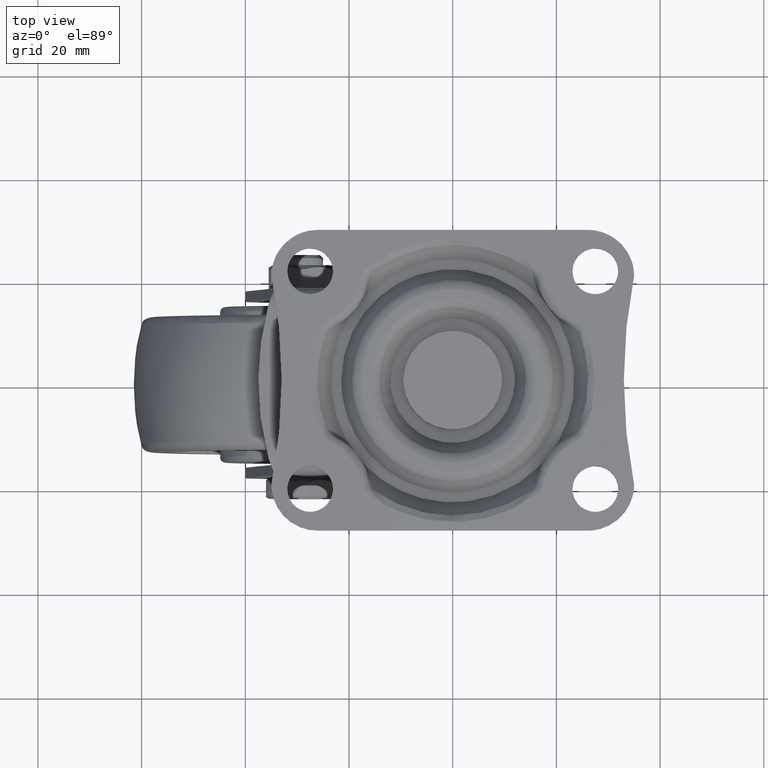
[diagram: clean part render]
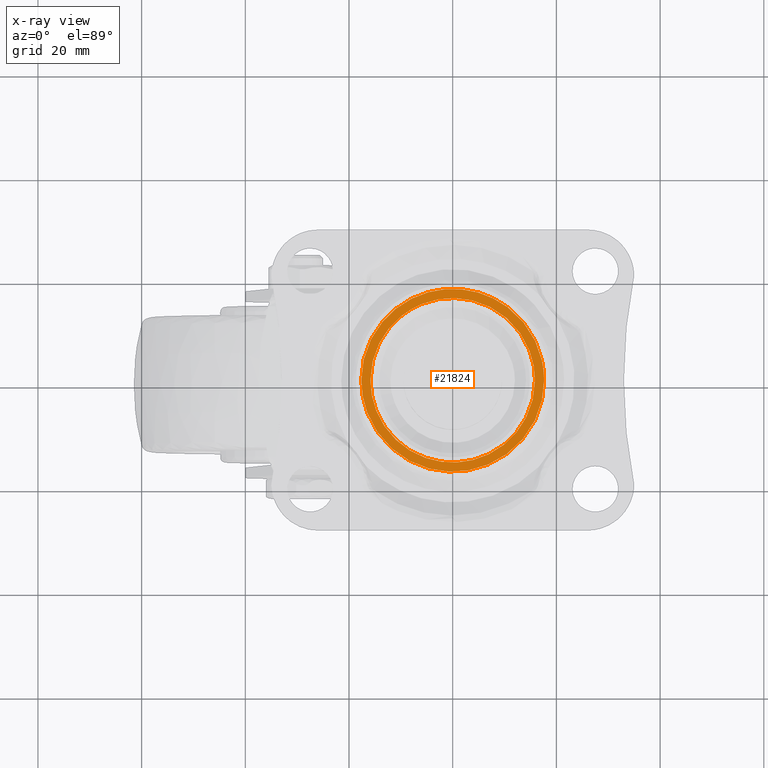
[diagram: x-ray — body ghosted, one internal face saturated and labeled with its STEP entity id]
A machine part, top view, then the same camera in x-ray: the body is ghosted and one INTERNAL B-rep face — a face not visible from any outside direction — is saturated and labeled: STEP entity #21824.
In plain terms, the highlighted face is a freeform B-spline surface patch.
Its self-contained STEP definition (entity closure, byte-faithful):
#8960=CARTESIAN_POINT('',(3.704368783670742,15.429806442625701,-1.999999999987358));
#8961=VERTEX_POINT('',#8960);
#8967=CARTESIAN_POINT('',(15.868247380920700,-1.421085E-014,-2.0));
#8968=VERTEX_POINT('',#8967);
#8969=CARTESIAN_POINT('',(3.704368783670742,15.429806442625697,-1.999999999987358));
#8970=CARTESIAN_POINT('',(15.868247380920701,12.509517563265035,-2.000000000000000));
#8971=CARTESIAN_POINT('',(15.868247380920700,-1.421085E-014,-2.0));
#8979=(BOUNDED_CURVE()B_SPLINE_CURVE(2,(#8969,#8970,#8971),.UNSPECIFIED.,.F.,.U.)B_SPLINE_CURVE_WITH_KNOTS((3,3),(0.289890169614090,0.500000000000000),.UNSPECIFIED.)CURVE()GEOMETRIC_REPRESENTATION_ITEM()RATIONAL_B_SPLINE_CURVE((0.921445412891104,0.753841021895689,1.0))REPRESENTATION_ITEM(''));
#8980=EDGE_CURVE('',#8961,#8968,#8979,.T.);
#8982=CARTESIAN_POINT('',(-15.868247380920700,-1.421085E-014,-2.0));
#8983=VERTEX_POINT('',#8982);
#8984=CARTESIAN_POINT('',(15.868247380920700,-1.421085E-014,-2.0));
#8985=CARTESIAN_POINT('',(15.868247380920701,-15.868247380920717,-2.0));
#8986=CARTESIAN_POINT('',(0.0,-15.868247380920710,-2.0));
#8987=CARTESIAN_POINT('',(-15.868247380920701,-15.868247380920717,-2.0));
#8988=CARTESIAN_POINT('',(-15.868247380920700,-1.421085E-014,-2.0));
#8996=(BOUNDED_CURVE()B_SPLINE_CURVE(2,(#8984,#8985,#8986,#8987,#8988),.UNSPECIFIED.,.F.,.U.)B_SPLINE_CURVE_WITH_KNOTS((3,2,3),(0.500000000000000,0.750000000000000,1.0),.UNSPECIFIED.)CURVE()GEOMETRIC_REPRESENTATION_ITEM()RATIONAL_B_SPLINE_CURVE((1.0,0.707106781186547,1.0,0.707106781186547,1.0))REPRESENTATION_ITEM(''));
#8997=EDGE_CURVE('',#8968,#8983,#8996,.T.);
#8999=CARTESIAN_POINT('',(-5.951681165614497,14.709818701982110,-1.999999999988168));
#9000=VERTEX_POINT('',#8999);
#9001=CARTESIAN_POINT('',(-15.868247380920700,-1.421085E-014,-2.0));
#9002=CARTESIAN_POINT('',(-15.868247380920694,10.697516336606308,-2.000000000000000));
#9003=CARTESIAN_POINT('',(-5.951681165614497,14.709818701982110,-1.999999999988168));
#9011=(BOUNDED_CURVE()B_SPLINE_CURVE(2,(#9001,#9002,#9003),.UNSPECIFIED.,.F.,.U.)B_SPLINE_CURVE_WITH_KNOTS((3,3),(0.0,0.186318862055918),.UNSPECIFIED.)CURVE()GEOMETRIC_REPRESENTATION_ITEM()RATIONAL_B_SPLINE_CURVE((1.0,0.781713875067130,0.888794329334967))REPRESENTATION_ITEM(''));
#9012=EDGE_CURVE('',#8983,#9000,#9011,.T.);
#9052=CARTESIAN_POINT('',(-5.951681165614497,14.709818701982110,-1.999999999988168));
#9053=CARTESIAN_POINT('',(-3.088578225110590,15.868247380920684,-2.000000000000000));
#9054=CARTESIAN_POINT('',(0.0,15.868247380920691,-2.0));
#9055=CARTESIAN_POINT('',(1.878130844238825,15.868247380920691,-2.0));
#9056=CARTESIAN_POINT('',(3.704368783670743,15.429806442625694,-1.999999999987358));
#9064=(BOUNDED_CURVE()B_SPLINE_CURVE(2,(#9052,#9053,#9054,#9055,#9056),.UNSPECIFIED.,.F.,.U.)B_SPLINE_CURVE_WITH_KNOTS((3,2,3),(0.186318862055918,0.250000000000000,0.289890169614090),.UNSPECIFIED.)CURVE()GEOMETRIC_REPRESENTATION_ITEM()RATIONAL_B_SPLINE_CURVE((0.888794329334967,0.925392906119418,1.0,0.953265759290859,0.921445412891104))REPRESENTATION_ITEM(''));
#9065=EDGE_CURVE('',#9000,#8961,#9064,.T.);
#9525=CARTESIAN_POINT('',(13.514556966336940,-11.324109255215310,-2.000000000000496));
#9526=VERTEX_POINT('',#9525);
#9527=CARTESIAN_POINT('',(-17.631752619079300,-1.421085E-014,-2.0));
#9528=VERTEX_POINT('',#9527);
#9529=CARTESIAN_POINT('',(13.514556966336945,-11.324109255215310,-2.000000000000496));
#9530=CARTESIAN_POINT('',(8.229260321144718,-17.631752619079315,-2.000000000000000));
#9531=CARTESIAN_POINT('',(0.0,-17.631752619079311,-2.0));
#9532=CARTESIAN_POINT('',(-17.631752619079297,-17.631752619079307,-2.000000000000000));
#9533=CARTESIAN_POINT('',(-17.631752619079300,-1.421085E-014,-2.0));
#9541=(BOUNDED_CURVE()B_SPLINE_CURVE(2,(#9529,#9530,#9531,#9532,#9533),.UNSPECIFIED.,.F.,.U.)B_SPLINE_CURVE_WITH_KNOTS((3,2,3),(0.611719378420028,0.750000000000000,1.0),.UNSPECIFIED.)CURVE()GEOMETRIC_REPRESENTATION_ITEM()RATIONAL_B_SPLINE_CURVE((0.855206479072511,0.837994174583669,1.0,0.707106781186548,1.0))REPRESENTATION_ITEM(''));
#9542=EDGE_CURVE('',#9526,#9528,#9541,.T.);
#10713=CARTESIAN_POINT('',(10.532645200699189,14.140087888574151,-2.000000000000206));
#10714=VERTEX_POINT('',#10713);
#10720=CARTESIAN_POINT('',(-17.631752619079300,-1.421085E-014,-2.0));
#10721=CARTESIAN_POINT('',(-17.631752619079297,17.631752619079279,-2.000000000000000));
#10722=CARTESIAN_POINT('',(0.0,17.631752619079290,-2.0));
#10723=CARTESIAN_POINT('',(5.845081419144844,17.631752619079293,-2.000000000000000));
#10724=CARTESIAN_POINT('',(10.532645200699189,14.140087888574152,-2.000000000000207));
#10732=(BOUNDED_CURVE()B_SPLINE_CURVE(2,(#10720,#10721,#10722,#10723,#10724),.UNSPECIFIED.,.F.,.U.)B_SPLINE_CURVE_WITH_KNOTS((3,2,3),(0.0,0.250000000000000,0.353055019499654),.UNSPECIFIED.)CURVE()GEOMETRIC_REPRESENTATION_ITEM()RATIONAL_B_SPLINE_CURVE((1.0,0.707106781186548,1.0,0.879263534495453,0.858067059446029))REPRESENTATION_ITEM(''));
#10733=EDGE_CURVE('',#9528,#10714,#10732,.T.);
#10756=CARTESIAN_POINT('',(17.631752619079300,-1.421085E-014,-2.0));
#10757=VERTEX_POINT('',#10756);
#10758=CARTESIAN_POINT('',(17.631752619079300,-1.421085E-014,-2.0));
#10759=CARTESIAN_POINT('',(17.631752619079297,-6.410515264161340,-2.000000000000000));
#10760=CARTESIAN_POINT('',(13.514556966336944,-11.324109255215310,-2.000000000000496));
#10768=(BOUNDED_CURVE()B_SPLINE_CURVE(2,(#10758,#10759,#10760),.UNSPECIFIED.,.F.,.U.)B_SPLINE_CURVE_WITH_KNOTS((3,3),(0.500000000000000,0.611719378420028),.UNSPECIFIED.)CURVE()GEOMETRIC_REPRESENTATION_ITEM()RATIONAL_B_SPLINE_CURVE((1.0,0.869112606602880,0.855206479072511))REPRESENTATION_ITEM(''));
#10769=EDGE_CURVE('',#10757,#9526,#10768,.T.);
#10771=CARTESIAN_POINT('',(10.532645200699189,14.140087888574149,-2.000000000000206));
#10772=CARTESIAN_POINT('',(17.631752619079304,8.852116535871330,-2.000000000000000));
#10773=CARTESIAN_POINT('',(17.631752619079300,-1.421085E-014,-2.0));
#10781=(BOUNDED_CURVE()B_SPLINE_CURVE(2,(#10771,#10772,#10773),.UNSPECIFIED.,.F.,.U.)B_SPLINE_CURVE_WITH_KNOTS((3,3),(0.353055019499654,0.500000000000000),.UNSPECIFIED.)CURVE()GEOMETRIC_REPRESENTATION_ITEM()RATIONAL_B_SPLINE_CURVE((0.858067059446029,0.827843246691094,1.0))REPRESENTATION_ITEM(''));
#10782=EDGE_CURVE('',#10714,#10757,#10781,.T.);
#21807=CARTESIAN_POINT('',(-19.393163849334680,19.388004089486071,-2.0));
#21808=CARTESIAN_POINT('',(19.393162903493771,19.388004089486071,-2.0));
#21809=CARTESIAN_POINT('',(-19.393163849334680,-19.388105925024771,-2.0));
#21810=CARTESIAN_POINT('',(19.393162903493771,-19.388105925024771,-2.0));
#21811=B_SPLINE_SURFACE_WITH_KNOTS('',1,1,((#21807,#21809),(#21808,#21810)),.UNSPECIFIED.,.F.,.F.,.U.,(2,2),(2,2),(0.0,38.786326752828451),(0.0,38.776110014510841),.UNSPECIFIED.);
#21812=ORIENTED_EDGE('',*,*,#10733,.T.);
#21813=ORIENTED_EDGE('',*,*,#10782,.T.);
#21814=ORIENTED_EDGE('',*,*,#10769,.T.);
#21815=ORIENTED_EDGE('',*,*,#9542,.T.);
#21816=EDGE_LOOP('',(#21812,#21813,#21814,#21815));
#21817=FACE_OUTER_BOUND('',#21816,.T.);
#21818=ORIENTED_EDGE('',*,*,#8997,.F.);
#21819=ORIENTED_EDGE('',*,*,#8980,.F.);
#21820=ORIENTED_EDGE('',*,*,#9065,.F.);
#21821=ORIENTED_EDGE('',*,*,#9012,.F.);
#21822=EDGE_LOOP('',(#21818,#21819,#21820,#21821));
#21823=FACE_BOUND('',#21822,.T.);
#21824=ADVANCED_FACE('',(#21817,#21823),#21811,.T.);